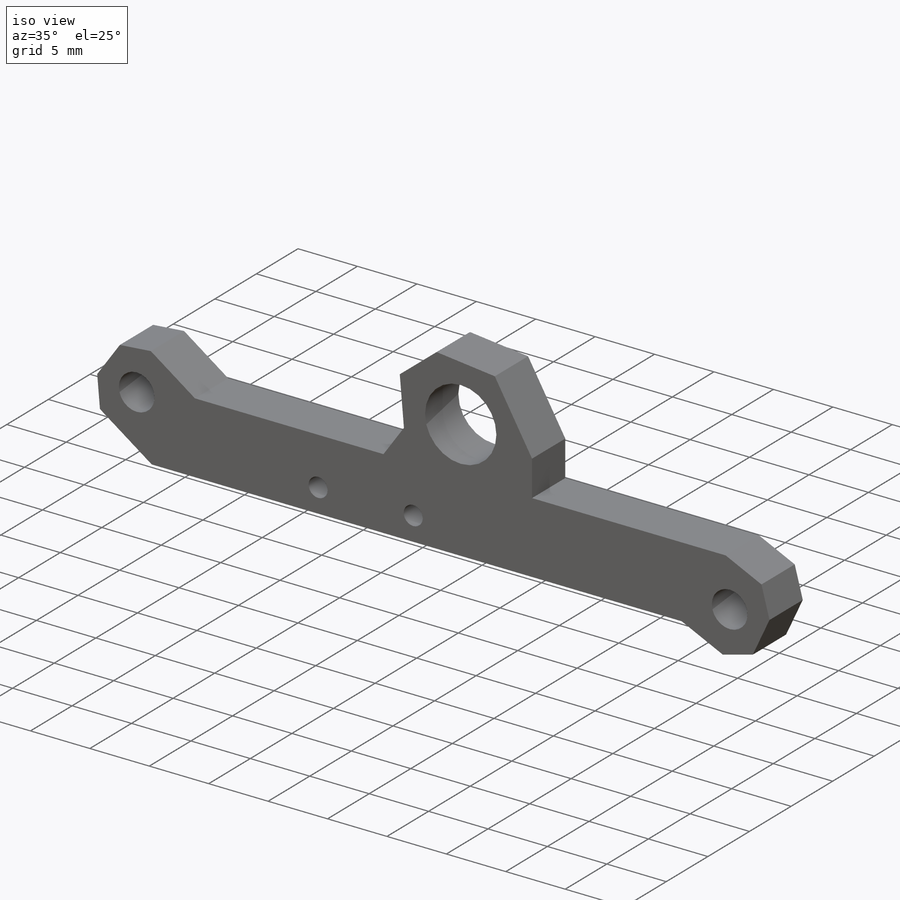
[diagram: iso view]
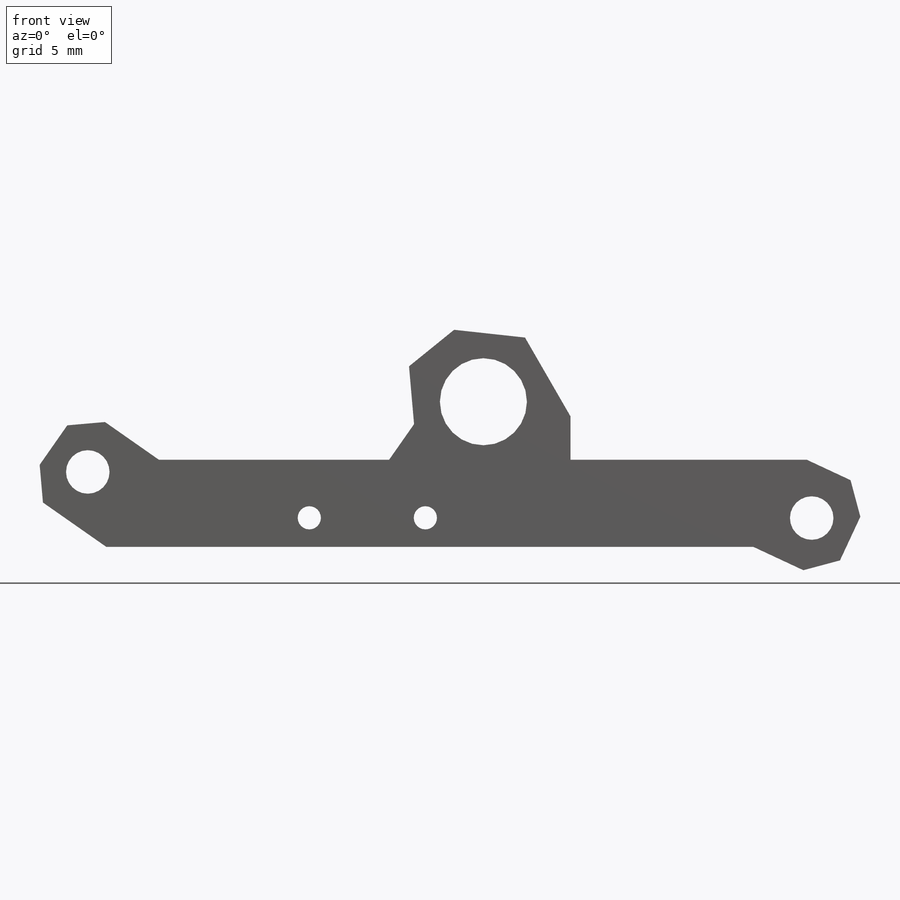
[diagram: front view]
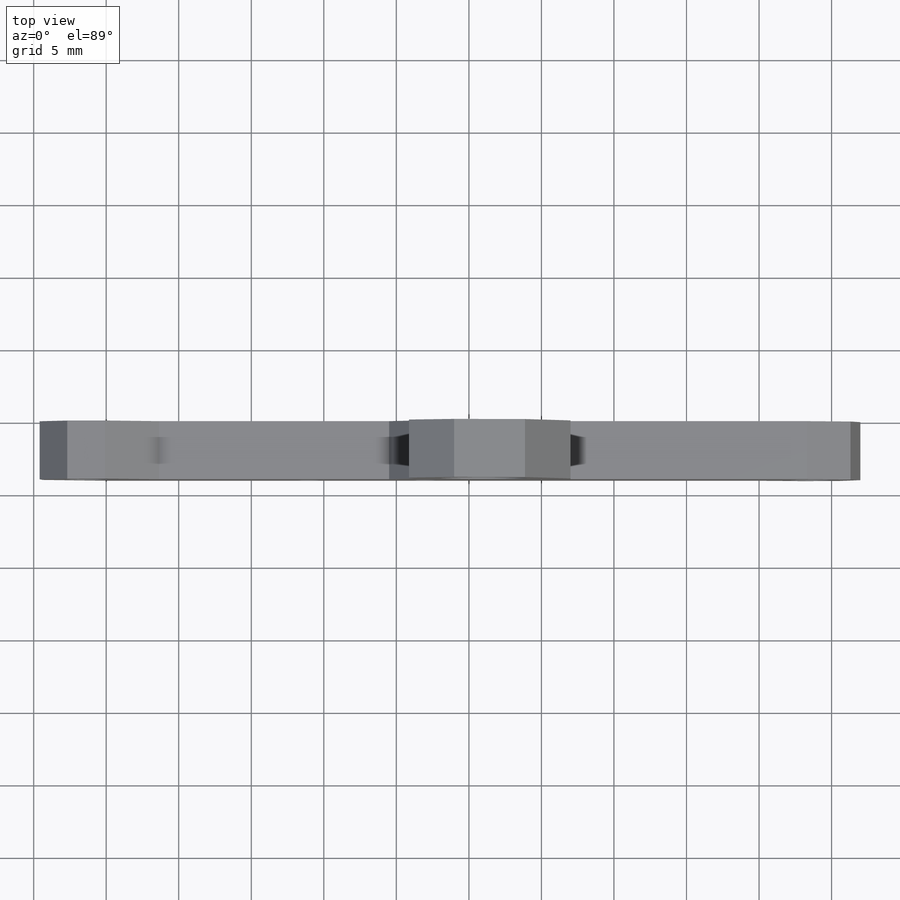
[diagram: top view]
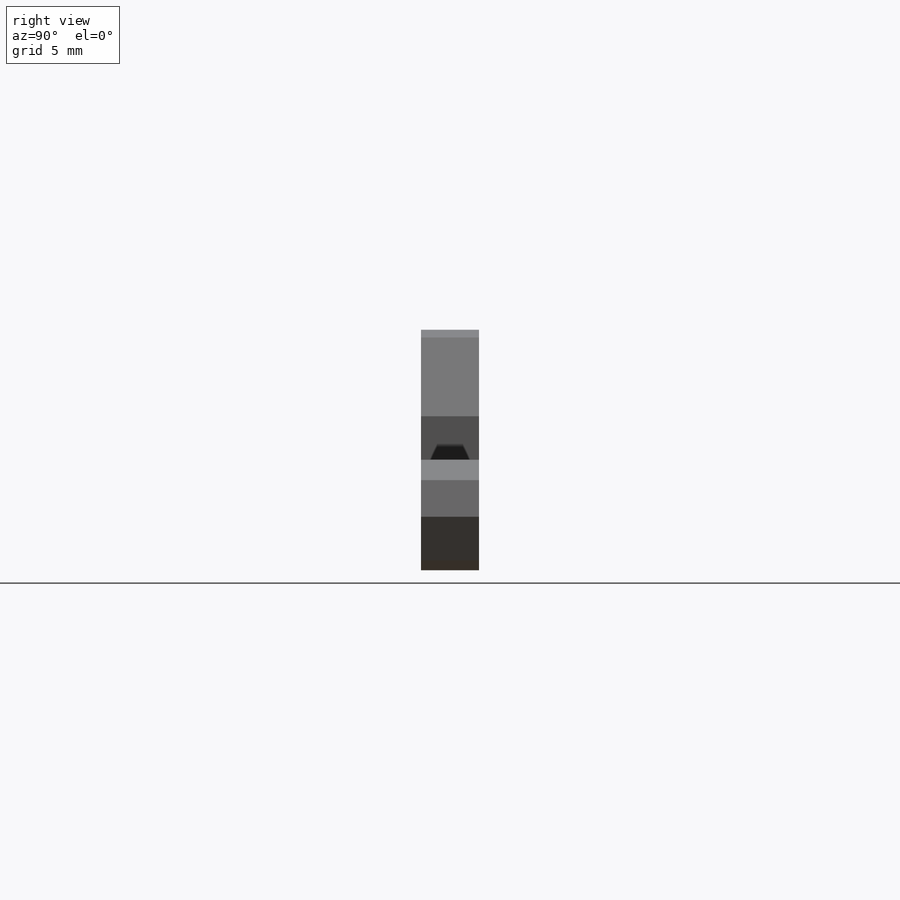
[diagram: right view]
SOLIDWORKS PART (.sldprt)
format: sldprt  version: not decoded by parser v0  size: 271,360 bytes
history: native  units: mm
features: plane x3, sketch x3, thread x2, material x1, extrude x1, hole x1, chamfer x1 (+8 scaffold rows collapsed)
feature tree (20):
  scaffold x8  (default folders/planes/origin — collapsed)
  material  "6061 合金"
  plane  "前视基准面"
  plane  "上视基准面"
  plane  "右视基准面"
  sketch  "草图1"  dims[c1.D13=~3.169397mm c1.D5=1.5mm c1.D1=6.0mm c1.D2=7.0mm c1.D3=8.0mm c1.D4=7.0mm c2.D5=55.0mm c2.D6=40.0mm c2.D7=~7.131177mm c2.D8=~4.978349mm c2.D9=~6.250083mm c3.D6=10.0mm c3.D7=5.0mm c3.D8=10.0mm c3.D9=8.0mm c3.D10=4.0mm c3.D11=25.0mm c3.D12=10.0mm c3.D13=4.0mm c3.D14=4.0mm c3.D15=3.0mm c3.D16=26.0mm c3.D17=2.5mm c3.D18=2.0mm c3.D5=8.0mm c4.D6=10.0mm c4.D7=~19.479821mm c5.D7=5.0deg c5.D5=~3.173132mm c6.D5=~161.499481deg c6.D3=~3.36023mm c7.D3=145.0deg c7.D5=~6.752245mm c8.D5=155.0deg c8.D6=5.0mm c8.D7=3.0mm c8.D8=7.0mm c8.D11=50.0mm c8.D9=~15.80363mm c9.D9=125.0deg c9.D10=~1.65839mm c10.D10=140.0deg c10.D12=~8.24868mm c11.D12=100.0deg c12.D12=~8.24868mm c13.D12=110.0deg c13.D13=3.0mm c13.D14=4.0mm c13.D17=9.0mm c13.D18=~5.279873mm c14.D18=135.0deg c14.D19=4.0mm c14.D12=3.0mm c14.D20=6.5mm c14.D17=~6.265509mm c14.D21=4.0mm c15.D21=124.0deg c15.D22=~4.570466mm c16.D22=~137.916754deg c16.D20=~5.368424mm c17.D20=126.0deg c17.D9=6.0mm c17.D10=6.5mm]
  extrude  "凸台-拉伸1"  Depth=4mm
  hole  "M2 螺纹孔1"  [1 undecoded]
  sketch  "草图3"  dims[c1.D1=8.0mm c1.D2=~7.969558mm c2.D2=0.0deg c2.D3=2.0mm c2.D4=14.0mm]
  sketch  "草图2"  dims[hole-wizard template sketch: 46 standard entries collapsed; hole parameters kept: c15.螺纹孔钻头直径=1.6mm c15.螺纹孔钻头深度=14.0mm c15.D3=~14.816244mm c15.导头角度=118.0deg]
  thread  "孔螺蚊线1"  Diameter=3mm  [1 undecoded]
  thread  "孔螺蚊线2"  Diameter=3mm  [1 undecoded]
  chamfer  "倒角1"  Distance=2mm Angle=40deg
decode coverage: 7 of 8 modeling features carry decoded parameters
note: ~ marks probable driven/reference dimensions
note: 3 parameter values undecoded
note: suppression state not decoded; provenance and decode notes live in map.json
